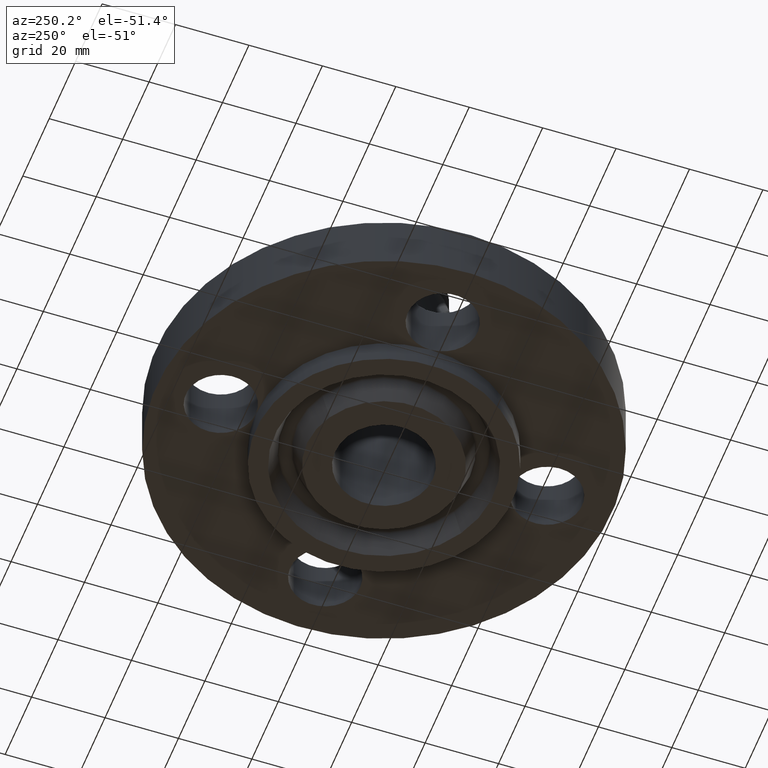
[diagram: clean part render]
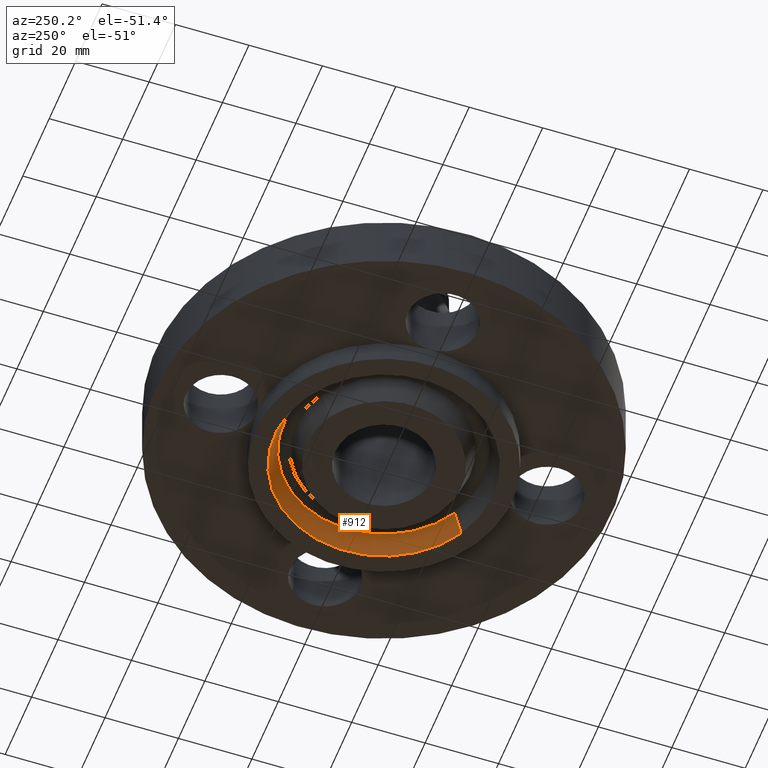
[diagram: same view with one face highlighted and labeled with its STEP entity id]
A machine part, auxiliary view. The second image highlights one B-rep face of the part: STEP entity #912.
In plain terms, the highlighted conical surface has half-angle 23 deg.
Its self-contained STEP definition (entity closure, byte-faithful):
#773=AXIS2_PLACEMENT_3D('Circle Axis2P3D',#771,#772,$) ;
#847=AXIS2_PLACEMENT_3D('Cone Axis2P3D',#844,#845,#846) ;
#868=AXIS2_PLACEMENT_3D('Circle Axis2P3D',#866,#867,$) ;
#766=CARTESIAN_POINT('Vertex',(0.561886731246,-1.02852676254,-0.250000000001)) ;
#768=CARTESIAN_POINT('Vertex',(-0.561886731246,1.02852676254,-0.250000000001)) ;
#771=CARTESIAN_POINT('Axis2P3D Location',(-1.04902962957E-016,-2.09805925913E-016,-0.250000000001)) ;
#813=CARTESIAN_POINT('Vertex',(-0.514854363898,0.942434591585,-0.0188873350169)) ;
#815=CARTESIAN_POINT('Vertex',(0.514854363898,-0.942434591585,-0.0188873350169)) ;
#844=CARTESIAN_POINT('Axis2P3D Location',(0.,0.,-0.0188873350169)) ;
#849=CARTESIAN_POINT('Line Origine',(-0.538370547572,0.985480677062,-0.134443667509)) ;
#854=CARTESIAN_POINT('Line Origine',(0.538370547572,-0.985480677062,-0.134443667509)) ;
#866=CARTESIAN_POINT('Axis2P3D Location',(0.,0.,-0.0188873350169)) ;
#772=DIRECTION('Axis2P3D Direction',(0.,0.,-0.0393700787402)) ;
#845=DIRECTION('Axis2P3D Direction',(-0.,-0.,-0.0393700787402)) ;
#846=DIRECTION('Axis2P3D XDirection',(-0.0188750212049,0.0345504945626,0.)) ;
#850=DIRECTION('Vector Direction',(-0.00737505833565,0.0134999537303,-0.0362403485611)) ;
#855=DIRECTION('Vector Direction',(0.00737505833565,-0.0134999537303,-0.0362403485611)) ;
#867=DIRECTION('Axis2P3D Direction',(0.,0.,0.0393700787402)) ;
#851=VECTOR('Line Direction',#850,0.0393700787402) ;
#856=VECTOR('Line Direction',#855,0.0393700787402) ;
#907=ORIENTED_EDGE('',*,*,#775,.T.) ;
#908=ORIENTED_EDGE('',*,*,#858,.T.) ;
#909=ORIENTED_EDGE('',*,*,#870,.T.) ;
#910=ORIENTED_EDGE('',*,*,#853,.F.) ;
#912=ADVANCED_FACE('PartBody',(#911),#848,.F.) ;
#774=CIRCLE('generated circle',#773,1.172) ;
#869=CIRCLE('generated circle',#868,1.07389849401) ;
#848=CONICAL_SURFACE('Cone',#847,1.07389849401,0.401425727959) ;
#775=EDGE_CURVE('',#769,#767,#774,.T.) ;
#853=EDGE_CURVE('',#769,#814,#852,.F.) ;
#858=EDGE_CURVE('',#767,#816,#857,.F.) ;
#870=EDGE_CURVE('',#816,#814,#869,.T.) ;
#906=EDGE_LOOP('',(#907,#908,#909,#910)) ;
#911=FACE_OUTER_BOUND('',#906,.T.) ;
#852=LINE('Line',#849,#851) ;
#857=LINE('Line',#854,#856) ;
#767=VERTEX_POINT('',#766) ;
#769=VERTEX_POINT('',#768) ;
#814=VERTEX_POINT('',#813) ;
#816=VERTEX_POINT('',#815) ;